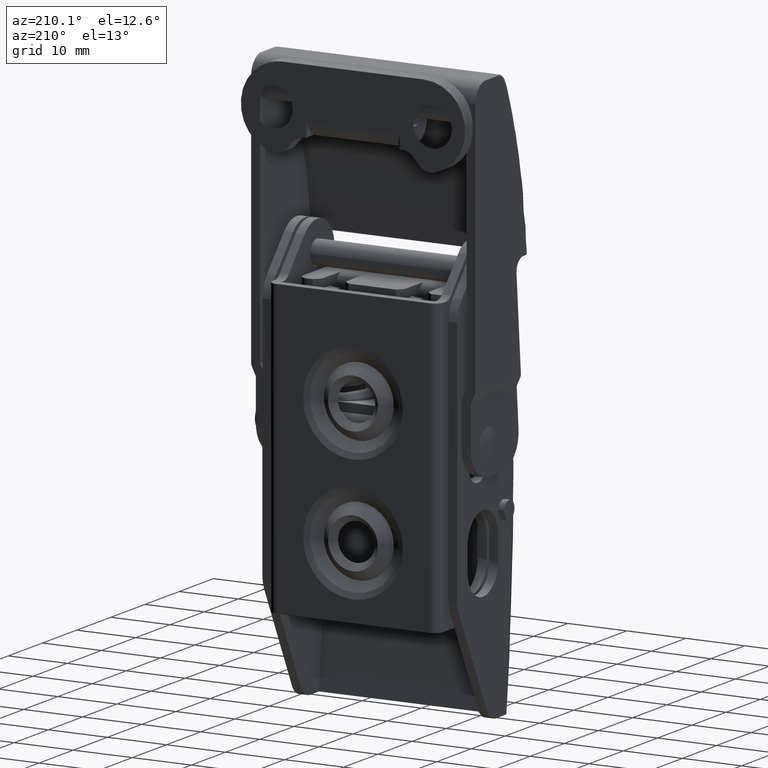
[diagram: clean part render]
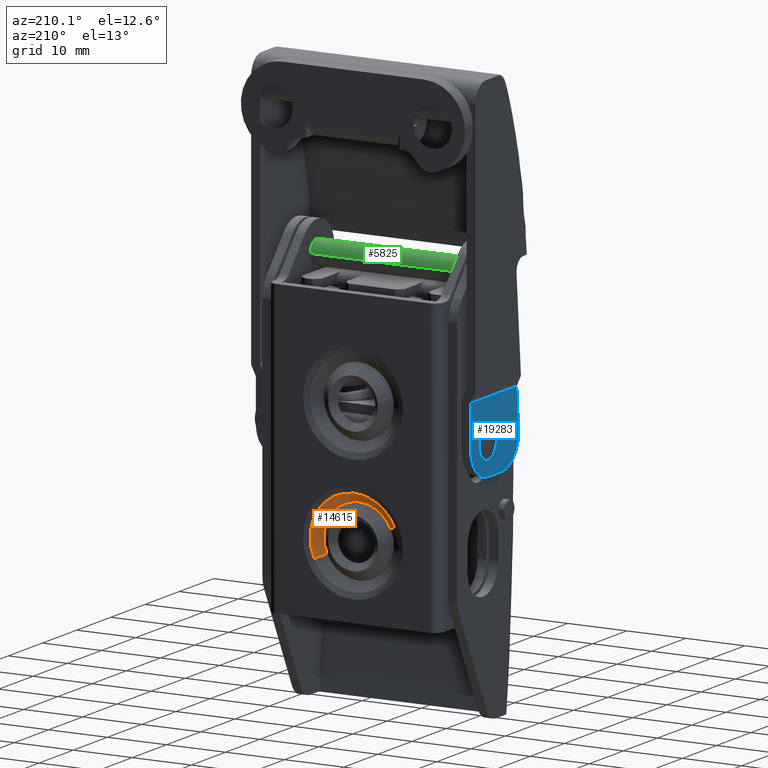
[diagram: same view with three faces highlighted in distinct colors, each labeled with its STEP entity id]
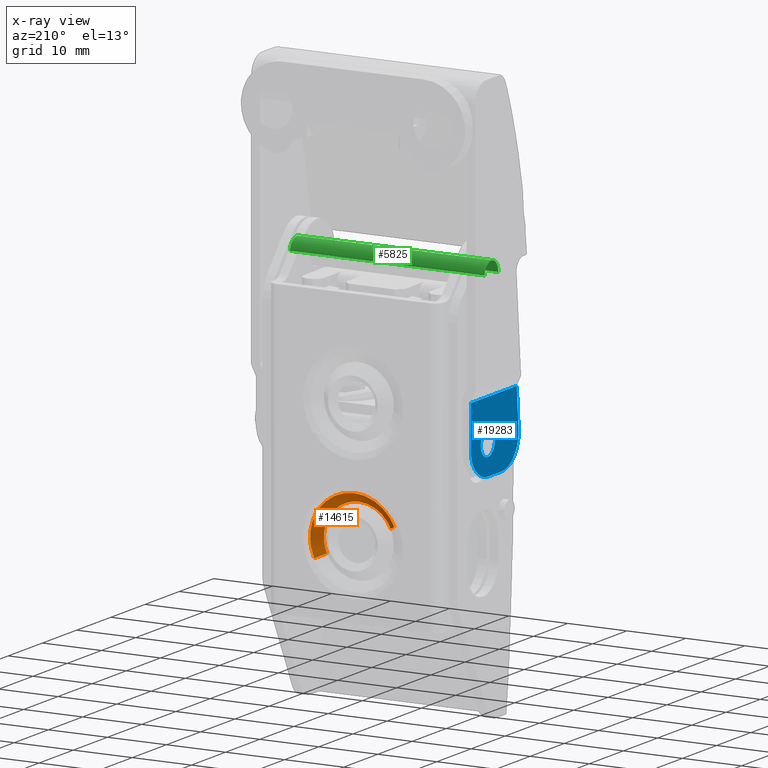
[diagram: x-ray of the same camera — body ghosted, the three highlighted faces saturated]
A machine part, auxiliary view with three faces highlighted in distinct colors.
The next image is the same camera in x-ray (body ghosted, the three faces saturated) — at least one of them is partly hidden behind the body in this view.
Their STEP definitions:

[orange] entity #14615 — the highlighted face is a freeform B-spline surface patch.
#14326=CARTESIAN_POINT('',(5.899635598978897,-1.699999999844768,-21.360837171166821));
#14327=VERTEX_POINT('',#14326);
#14328=CARTESIAN_POINT('',(0.0,-1.699999999843975,-15.089339828308210));
#14329=VERTEX_POINT('',#14328);
#14330=CARTESIAN_POINT('',(5.899635598978897,-1.699999999844769,-21.360837171166818));
#14331=CARTESIAN_POINT('',(5.910660171660971,-1.699999999844786,-21.180587001144787));
#14332=CARTESIAN_POINT('',(5.910660171660775,-1.699999999844800,-20.999999999963091));
#14333=CARTESIAN_POINT('',(5.910660171654363,-1.699999999845276,-15.089339828310051));
#14334=CARTESIAN_POINT('',(0.0,-1.699999999843975,-15.089339828308210));
#14342=(BOUNDED_CURVE()B_SPLINE_CURVE(2,(#14330,#14331,#14332,#14333,#14334),.UNSPECIFIED.,.F.,.U.)B_SPLINE_CURVE_WITH_KNOTS((3,2,3),(0.239332962240872,0.250000000000000,0.500000000000000),.UNSPECIFIED.)CURVE()GEOMETRIC_REPRESENTATION_ITEM()RATIONAL_B_SPLINE_CURVE((0.976072041670853,0.987502787902098,1.0,0.707106781186547,1.0))REPRESENTATION_ITEM(''));
#14343=EDGE_CURVE('',#14327,#14329,#14342,.T.);
#14361=CARTESIAN_POINT('',(-5.378471841459499,-1.699999999832229,-18.548889166984662));
#14362=VERTEX_POINT('',#14361);
#14376=CARTESIAN_POINT('',(0.0,-1.699999999843975,-15.089339828308210));
#14377=CARTESIAN_POINT('',(-3.801864375390952,-1.699999999838103,-15.089339828305366));
#14378=CARTESIAN_POINT('',(-5.378471841459498,-1.699999999832229,-18.548889166984665));
#14386=(BOUNDED_CURVE()B_SPLINE_CURVE(2,(#14376,#14377,#14378),.UNSPECIFIED.,.F.,.U.)B_SPLINE_CURVE_WITH_KNOTS((3,3),(0.500000000000000,0.679570116080264),.UNSPECIFIED.)CURVE()GEOMETRIC_REPRESENTATION_ITEM()RATIONAL_B_SPLINE_CURVE((1.0,0.789620522794185,0.881463982730397))REPRESENTATION_ITEM(''));
#14387=EDGE_CURVE('',#14329,#14362,#14386,.T.);
#14410=CARTESIAN_POINT('',(5.378471841459499,-1.699999999832229,-23.451110832932141));
#14411=VERTEX_POINT('',#14410);
#14412=CARTESIAN_POINT('',(5.378471841459498,-1.699999999832229,-23.451110832932148));
#14413=CARTESIAN_POINT('',(5.832758382289244,-1.699999999838326,-22.454269998588327));
#14414=CARTESIAN_POINT('',(5.899635598978897,-1.699999999844768,-21.360837171166821));
#14422=(BOUNDED_CURVE()B_SPLINE_CURVE(2,(#14412,#14413,#14414),.UNSPECIFIED.,.F.,.U.)B_SPLINE_CURVE_WITH_KNOTS((3,3),(0.179570116080264,0.239332962240872),.UNSPECIFIED.)CURVE()GEOMETRIC_REPRESENTATION_ITEM()RATIONAL_B_SPLINE_CURVE((0.881463982730397,0.912030463873465,0.976072041670853))REPRESENTATION_ITEM(''));
#14423=EDGE_CURVE('',#14411,#14327,#14422,.T.);
#14482=CARTESIAN_POINT('',(6.801247467196288,-0.360769384819679,-24.099507041223511));
#14483=VERTEX_POINT('',#14482);
#14512=CARTESIAN_POINT('',(-6.801247467196289,-0.360769384819678,-17.900492958693292));
#14513=VERTEX_POINT('',#14512);
#14529=CARTESIAN_POINT('',(-5.378471841459499,-1.699999999832229,-18.548889166984662));
#14530=CARTESIAN_POINT('',(-6.801247467196289,-0.360769384819678,-17.900492958693292));
#14531=QUASI_UNIFORM_CURVE('',1,(#14529,#14530),.UNSPECIFIED.,.F.,.U.);
#14532=EDGE_CURVE('',#14362,#14513,#14531,.T.);
#14537=CARTESIAN_POINT('',(5.378471841459499,-1.699999999832229,-23.451110832932141));
#14538=CARTESIAN_POINT('',(6.801247467196288,-0.360769384819679,-24.099507041223511));
#14539=QUASI_UNIFORM_CURVE('',1,(#14537,#14538),.UNSPECIFIED.,.F.,.U.);
#14540=EDGE_CURVE('',#14411,#14483,#14539,.T.);
#14545=CARTESIAN_POINT('',(-5.342902450863749,-1.733480765225168,-18.565099072350389));
#14546=CARTESIAN_POINT('',(-2.908001523255742,-1.733480765225168,-13.222196621486644));
#14547=CARTESIAN_POINT('',(2.434900927608007,-1.733480765225168,-15.657097549094649));
#14548=CARTESIAN_POINT('',(7.777803378471756,-1.733480765225168,-18.091998476702660));
#14549=CARTESIAN_POINT('',(5.342902450863749,-1.733480765225168,-23.434900927566400));
#14550=CARTESIAN_POINT('',(-6.837706092947780,-0.326451600080539,-17.883877805786970));
#14551=CARTESIAN_POINT('',(-3.721583898776347,-0.326451600080539,-11.046171712839186));
#14552=CARTESIAN_POINT('',(3.116122194171433,-0.326451600080539,-14.162293907010620));
#14553=CARTESIAN_POINT('',(9.953828287119213,-0.326451600080539,-17.278416101182053));
#14554=CARTESIAN_POINT('',(6.837706092947780,-0.326451600080539,-24.116122194129829));
#14562=(BOUNDED_SURFACE()B_SPLINE_SURFACE(2,1,((#14545,#14550),(#14546,#14551),(#14547,#14552),(#14548,#14553),(#14549,#14554)),.UNSPECIFIED.,.F.,.F.,.U.)B_SPLINE_SURFACE_WITH_KNOTS((3,2,3),(2,2),(0.0,12.450070963973500,24.900141927946990),(0.0,2.162921962062792),.UNSPECIFIED.)GEOMETRIC_REPRESENTATION_ITEM()RATIONAL_B_SPLINE_SURFACE(((1.0,1.0),(0.707106781186548,0.707106781186548),(1.0,1.0),(0.707106781186548,0.707106781186548),(1.0,1.0)))REPRESENTATION_ITEM('')SURFACE());
#14563=CARTESIAN_POINT('',(4.907464033313442,-0.360769384596261,-15.362561949249759));
#14564=VERTEX_POINT('',#14563);
#14565=CARTESIAN_POINT('',(6.801247467196288,-0.360769384819679,-24.099507041223507));
#14566=CARTESIAN_POINT('',(7.474216414470755,-0.360769384773580,-22.622811461298379));
#14567=CARTESIAN_POINT('',(7.474216414495024,-0.360769384729129,-20.999999999749299));
#14568=CARTESIAN_POINT('',(7.474216414545919,-0.360769384635914,-17.596953685400621));
#14569=CARTESIAN_POINT('',(4.907464033313442,-0.360769384596262,-15.362561949249757));
#14577=(BOUNDED_CURVE()B_SPLINE_CURVE(2,(#14565,#14566,#14567,#14568,#14569),.UNSPECIFIED.,.F.,.U.)B_SPLINE_CURVE_WITH_KNOTS((3,2,3),(0.179570116078924,0.250000000000000,0.385432807299038),.UNSPECIFIED.)CURVE()GEOMETRIC_REPRESENTATION_ITEM()RATIONAL_B_SPLINE_CURVE((0.881463982729026,0.917486258390792,1.0,0.841330596548971,0.854573535032634))REPRESENTATION_ITEM(''));
#14578=EDGE_CURVE('',#14483,#14564,#14577,.T.);
#14579=ORIENTED_EDGE('',*,*,#14578,.F.);
#14580=ORIENTED_EDGE('',*,*,#14540,.F.);
#14581=ORIENTED_EDGE('',*,*,#14423,.T.);
#14582=ORIENTED_EDGE('',*,*,#14343,.T.);
#14583=ORIENTED_EDGE('',*,*,#14387,.T.);
#14584=ORIENTED_EDGE('',*,*,#14532,.T.);
#14585=CARTESIAN_POINT('',(0.0,-0.360769384958777,-13.525783585676839));
#14586=VERTEX_POINT('',#14585);
#14587=CARTESIAN_POINT('',(0.0,-0.360769384958777,-13.525783585676839));
#14588=CARTESIAN_POINT('',(-4.807577545346636,-0.360769384929503,-13.525783585707680));
#14589=CARTESIAN_POINT('',(-6.801247467196291,-0.360769384819678,-17.900492958693281));
#14597=(BOUNDED_CURVE()B_SPLINE_CURVE(2,(#14587,#14588,#14589),.UNSPECIFIED.,.F.,.U.)B_SPLINE_CURVE_WITH_KNOTS((3,3),(0.500000000000000,0.679570116078924),.UNSPECIFIED.)CURVE()GEOMETRIC_REPRESENTATION_ITEM()RATIONAL_B_SPLINE_CURVE((1.0,0.789620522795755,0.881463982729026))REPRESENTATION_ITEM(''));
#14598=EDGE_CURVE('',#14586,#14513,#14597,.T.);
#14599=ORIENTED_EDGE('',*,*,#14598,.F.);
#14600=CARTESIAN_POINT('',(4.907464033313442,-0.360769384596262,-15.362561949249757));
#14601=CARTESIAN_POINT('',(2.797469101162205,-0.360769384777519,-13.525783585517228));
#14602=CARTESIAN_POINT('',(0.0,-0.360769384958777,-13.525783585676839));
#14610=(BOUNDED_CURVE()B_SPLINE_CURVE(2,(#14600,#14601,#14602),.UNSPECIFIED.,.F.,.U.)B_SPLINE_CURVE_WITH_KNOTS((3,3),(0.385432807299038,0.500000000000000),.UNSPECIFIED.)CURVE()GEOMETRIC_REPRESENTATION_ITEM()RATIONAL_B_SPLINE_CURVE((0.854573535032634,0.865776184637577,1.0))REPRESENTATION_ITEM(''));
#14611=EDGE_CURVE('',#14564,#14586,#14610,.T.);
#14612=ORIENTED_EDGE('',*,*,#14611,.F.);
#14613=EDGE_LOOP('',(#14579,#14580,#14581,#14582,#14583,#14584,#14599,#14612));
#14614=FACE_OUTER_BOUND('',#14613,.T.);
#14615=ADVANCED_FACE('',(#14614),#14562,.F.);

[blue] entity #19283 — the highlighted face is a freeform B-spline surface patch.
#17827=CARTESIAN_POINT('',(-18.199999999997448,-8.000000000000091,-3.450000000133610));
#17828=VERTEX_POINT('',#17827);
#17829=CARTESIAN_POINT('',(-18.199999999997448,-10.043680534149891,-5.339158853851931));
#17830=VERTEX_POINT('',#17829);
#17831=CARTESIAN_POINT('',(-18.199999999997448,-8.000000000000091,-3.450000000133610));
#17832=CARTESIAN_POINT('',(-18.199999999997459,-9.895000507862585,-3.450000000133610));
#17833=CARTESIAN_POINT('',(-18.199999999997452,-10.043680534149884,-5.339158853851932));
#17841=(BOUNDED_CURVE()B_SPLINE_CURVE(2,(#17831,#17832,#17833),.UNSPECIFIED.,.F.,.U.)B_SPLINE_CURVE_WITH_KNOTS((3,3),(0.0,0.236331300629446),.UNSPECIFIED.)CURVE()GEOMETRIC_REPRESENTATION_ITEM()RATIONAL_B_SPLINE_CURVE((1.0,0.723120658609088,0.969723356164884))REPRESENTATION_ITEM(''));
#17842=EDGE_CURVE('',#17828,#17830,#17841,.T.);
#17844=CARTESIAN_POINT('',(-18.199999999997448,-5.956319465850295,-5.660841146415288));
#17845=VERTEX_POINT('',#17844);
#17846=CARTESIAN_POINT('',(-18.199999999997456,-5.956319465850296,-5.660841146415289));
#17847=CARTESIAN_POINT('',(-18.199999999997456,-5.950000000000091,-5.580544719519223));
#17848=CARTESIAN_POINT('',(-18.199999999997448,-5.950000000000091,-5.500000000133610));
#17849=CARTESIAN_POINT('',(-18.199999999997448,-5.950000000000091,-3.450000000133610));
#17850=CARTESIAN_POINT('',(-18.199999999997448,-8.000000000000091,-3.450000000133610));
#17858=(BOUNDED_CURVE()B_SPLINE_CURVE(2,(#17846,#17847,#17848,#17849,#17850),.UNSPECIFIED.,.F.,.U.)B_SPLINE_CURVE_WITH_KNOTS((3,2,3),(0.736331300629446,0.750000000000000,1.0),.UNSPECIFIED.)CURVE()GEOMETRIC_REPRESENTATION_ITEM()RATIONAL_B_SPLINE_CURVE((0.969723356164884,0.983986122577460,1.0,0.707106781186547,1.0))REPRESENTATION_ITEM(''));
#17859=EDGE_CURVE('',#17845,#17828,#17858,.T.);
#17926=CARTESIAN_POINT('',(-18.199999999997448,-8.000000000000091,-7.550000000133609));
#17927=VERTEX_POINT('',#17926);
#17928=CARTESIAN_POINT('',(-18.199999999997452,-10.043680534149884,-5.339158853851932));
#17929=CARTESIAN_POINT('',(-18.199999999997452,-10.050000000000088,-5.419455280747997));
#17930=CARTESIAN_POINT('',(-18.199999999997448,-10.050000000000090,-5.500000000133610));
#17931=CARTESIAN_POINT('',(-18.199999999997448,-10.050000000000090,-7.550000000133610));
#17932=CARTESIAN_POINT('',(-18.199999999997448,-8.000000000000091,-7.550000000133609));
#17940=(BOUNDED_CURVE()B_SPLINE_CURVE(2,(#17928,#17929,#17930,#17931,#17932),.UNSPECIFIED.,.F.,.U.)B_SPLINE_CURVE_WITH_KNOTS((3,2,3),(0.236331300629446,0.250000000000000,0.500000000000000),.UNSPECIFIED.)CURVE()GEOMETRIC_REPRESENTATION_ITEM()RATIONAL_B_SPLINE_CURVE((0.969723356164884,0.983986122577460,1.0,0.707106781186547,1.0))REPRESENTATION_ITEM(''));
#17941=EDGE_CURVE('',#17830,#17927,#17940,.T.);
#17975=CARTESIAN_POINT('',(-18.199999999997448,-8.000000000000091,-7.550000000133609));
#17976=CARTESIAN_POINT('',(-18.199999999997456,-6.104999492137596,-7.550000000133610));
#17977=CARTESIAN_POINT('',(-18.199999999997456,-5.956319465850296,-5.660841146415289));
#17985=(BOUNDED_CURVE()B_SPLINE_CURVE(2,(#17975,#17976,#17977),.UNSPECIFIED.,.F.,.U.)B_SPLINE_CURVE_WITH_KNOTS((3,3),(0.500000000000000,0.736331300629446),.UNSPECIFIED.)CURVE()GEOMETRIC_REPRESENTATION_ITEM()RATIONAL_B_SPLINE_CURVE((1.0,0.723120658609088,0.969723356164884))REPRESENTATION_ITEM(''));
#17986=EDGE_CURVE('',#17927,#17845,#17985,.T.);
#19211=CARTESIAN_POINT('',(-18.199999999989039,-2.300793167230813,-11.099399976932030));
#19212=CARTESIAN_POINT('',(-18.200000000006490,-2.300793167230813,2.099400298417143));
#19213=CARTESIAN_POINT('',(-18.199999999989039,-17.697342541692461,-11.099399976932030));
#19214=CARTESIAN_POINT('',(-18.200000000006490,-17.697342541692461,2.099400298417143));
#19215=B_SPLINE_SURFACE_WITH_KNOTS('',1,1,((#19211,#19213),(#19212,#19214)),.UNSPECIFIED.,.F.,.F.,.U.,(2,2),(2,2),(0.0,13.198800275349170),(0.0,15.396549374461650),.UNSPECIFIED.);
#19216=CARTESIAN_POINT('',(-18.199999999996450,-3.000000000000115,-5.500000000172790));
#19217=VERTEX_POINT('',#19216);
#19218=CARTESIAN_POINT('',(-18.199999999989849,-8.000000000000091,-10.500000000190321));
#19219=VERTEX_POINT('',#19218);
#19220=CARTESIAN_POINT('',(-18.199999999996450,-3.000000000000090,-5.500000000172787));
#19221=CARTESIAN_POINT('',(-18.199999999989839,-3.000000000000937,-10.500000000171939));
#19222=CARTESIAN_POINT('',(-18.199999999989839,-8.000000000000091,-10.500000000171941));
#19230=(BOUNDED_CURVE()B_SPLINE_CURVE(2,(#19220,#19221,#19222),.UNSPECIFIED.,.F.,.U.)CURVE()GEOMETRIC_REPRESENTATION_ITEM()QUASI_UNIFORM_CURVE()RATIONAL_B_SPLINE_CURVE((1.0,0.707106781186607,1.0))REPRESENTATION_ITEM(''));
#19231=EDGE_CURVE('',#19217,#19219,#19230,.T.);
#19232=ORIENTED_EDGE('',*,*,#19231,.T.);
#19233=CARTESIAN_POINT('',(-18.199999999989799,-12.0,-10.500000000171941));
#19234=VERTEX_POINT('',#19233);
#19235=CARTESIAN_POINT('',(-18.199999999989849,-8.000000000000091,-10.500000000190321));
#19236=CARTESIAN_POINT('',(-18.199999999989799,-12.0,-10.500000000171941));
#19237=QUASI_UNIFORM_CURVE('',1,(#19235,#19236),.UNSPECIFIED.,.F.,.U.);
#19238=EDGE_CURVE('',#19219,#19234,#19237,.T.);
#19239=ORIENTED_EDGE('',*,*,#19238,.T.);
#19240=CARTESIAN_POINT('',(-18.199999999997001,-16.983027511585298,-5.088372961719601));
#19241=VERTEX_POINT('',#19240);
#19242=CARTESIAN_POINT('',(-18.199999999989799,-12.0,-10.500000000171941));
#19243=CARTESIAN_POINT('',(-18.199999999989839,-12.344416885845050,-10.500048589614741));
#19244=CARTESIAN_POINT('',(-18.199999999989970,-13.033237125606931,-10.428549107756410));
#19245=CARTESIAN_POINT('',(-18.199999999990350,-14.063775806203351,-10.098558933469761));
#19246=CARTESIAN_POINT('',(-18.199999999991011,-14.942820037077190,-9.583965328980460));
#19247=CARTESIAN_POINT('',(-18.199999999992158,-15.731823760949730,-8.878298076627548));
#19248=CARTESIAN_POINT('',(-18.199999999992780,-16.288955254176940,-8.131304858395666));
#19249=CARTESIAN_POINT('',(-18.199999999994368,-16.718375096016860,-7.235741975388222));
#19250=CARTESIAN_POINT('',(-18.199999999995072,-16.986070299677049,-6.254450671484401));
#19251=CARTESIAN_POINT('',(-18.199999999996610,-17.016799627892400,-5.495978762635897));
#19252=CARTESIAN_POINT('',(-18.199999999997001,-16.983027511585298,-5.088372961719601));
#19253=B_SPLINE_CURVE_WITH_KNOTS('',3,(#19242,#19243,#19244,#19245,#19246,#19247,#19248,#19249,#19250,#19251,#19252),.UNSPECIFIED.,.F.,.U.,(4,1,1,1,1,1,1,1,4),(0.000000121534580,1.033248478817737,2.066533408520411,3.228959444968282,4.068519732145297,5.230906403821765,6.005857866094974,7.039146661582945,8.266132512753893),.UNSPECIFIED.);
#19254=EDGE_CURVE('',#19234,#19241,#19253,.T.);
#19255=ORIENTED_EDGE('',*,*,#19254,.T.);
#19256=CARTESIAN_POINT('',(-18.200000000005652,-16.438789607205852,1.499999999810356));
#19257=VERTEX_POINT('',#19256);
#19258=CARTESIAN_POINT('',(-18.199999999997001,-16.983027511585298,-5.088372961719601));
#19259=CARTESIAN_POINT('',(-18.200000000005652,-16.438789607205852,1.499999999810356));
#19260=QUASI_UNIFORM_CURVE('',1,(#19258,#19259),.UNSPECIFIED.,.F.,.U.);
#19261=EDGE_CURVE('',#19241,#19257,#19260,.T.);
#19262=ORIENTED_EDGE('',*,*,#19261,.T.);
#19263=CARTESIAN_POINT('',(-18.200000000005701,-3.000000000000115,1.499999999810350));
#19264=VERTEX_POINT('',#19263);
#19265=CARTESIAN_POINT('',(-18.200000000005701,-3.000000000000115,1.499999999810350));
#19266=CARTESIAN_POINT('',(-18.200000000005652,-16.438789607205852,1.499999999810356));
#19267=QUASI_UNIFORM_CURVE('',1,(#19265,#19266),.UNSPECIFIED.,.F.,.U.);
#19268=EDGE_CURVE('',#19264,#19257,#19267,.T.);
#19269=ORIENTED_EDGE('',*,*,#19268,.F.);
#19270=CARTESIAN_POINT('',(-18.200000000005701,-3.000000000000115,1.499999999810350));
#19271=CARTESIAN_POINT('',(-18.199999999996450,-3.000000000000115,-5.500000000172790));
#19272=QUASI_UNIFORM_CURVE('',1,(#19270,#19271),.UNSPECIFIED.,.F.,.U.);
#19273=EDGE_CURVE('',#19264,#19217,#19272,.T.);
#19274=ORIENTED_EDGE('',*,*,#19273,.T.);
#19275=EDGE_LOOP('',(#19232,#19239,#19255,#19262,#19269,#19274));
#19276=FACE_OUTER_BOUND('',#19275,.T.);
#19277=ORIENTED_EDGE('',*,*,#17986,.T.);
#19278=ORIENTED_EDGE('',*,*,#17859,.T.);
#19279=ORIENTED_EDGE('',*,*,#17842,.T.);
#19280=ORIENTED_EDGE('',*,*,#17941,.T.);
#19281=EDGE_LOOP('',(#19277,#19278,#19279,#19280));
#19282=FACE_BOUND('',#19281,.T.);
#19283=ADVANCED_FACE('',(#19276,#19282),#19215,.F.);

[green] entity #5825 — the highlighted face is a freeform B-spline surface patch.
#5588=CARTESIAN_POINT('',(16.500000000270500,-12.0,21.000000000329159));
#5589=VERTEX_POINT('',#5588);
#5590=CARTESIAN_POINT('',(16.500000000270550,-10.004947867778140,19.139507635502412));
#5591=VERTEX_POINT('',#5590);
#5592=CARTESIAN_POINT('',(16.500000000270500,-12.0,21.000000000329159));
#5593=CARTESIAN_POINT('',(16.500000000270525,-10.150610284266110,20.991294722231210));
#5594=CARTESIAN_POINT('',(16.500000000270546,-10.004947867778144,19.139507635502408));
#5602=(BOUNDED_CURVE()B_SPLINE_CURVE(2,(#5592,#5593,#5594),.UNSPECIFIED.,.F.,.U.)B_SPLINE_CURVE_WITH_KNOTS((3,3),(0.0,0.236331300632701),.UNSPECIFIED.)CURVE()GEOMETRIC_REPRESENTATION_ITEM()RATIONAL_B_SPLINE_CURVE((1.0,0.723120658605274,0.969723356171677))REPRESENTATION_ITEM(''));
#5603=EDGE_CURVE('',#5589,#5591,#5602,.T.);
#5605=CARTESIAN_POINT('',(16.500000000270550,-13.995052132221851,18.860492364966390));
#5606=VERTEX_POINT('',#5605);
#5607=CARTESIAN_POINT('',(16.500000000270546,-13.995052132221854,18.860492364966390));
#5608=CARTESIAN_POINT('',(16.500000000270461,-13.999925268625248,18.930163686980695));
#5609=CARTESIAN_POINT('',(16.500000000270472,-13.999926595062609,19.000005133214280));
#5610=CARTESIAN_POINT('',(16.500000000270479,-13.999964579258787,21.000002477195299));
#5611=CARTESIAN_POINT('',(16.500000000270500,-12.0,21.000000000329159));
#5619=(BOUNDED_CURVE()B_SPLINE_CURVE(2,(#5607,#5608,#5609,#5610,#5611),.UNSPECIFIED.,.F.,.U.)B_SPLINE_CURVE_WITH_KNOTS((3,2,3),(0.737829682996913,0.750000000000000,1.0),.UNSPECIFIED.)CURVE()GEOMETRIC_REPRESENTATION_ITEM()RATIONAL_B_SPLINE_CURVE((0.972871408708909,0.985741586715943,1.0,0.707106781186547,1.0))REPRESENTATION_ITEM(''));
#5620=EDGE_CURVE('',#5606,#5589,#5619,.T.);
#5718=CARTESIAN_POINT('',(-16.500000000212449,-10.003730403152240,19.122097079312869));
#5719=VERTEX_POINT('',#5718);
#5720=CARTESIAN_POINT('',(16.500000000270550,-10.004947867778140,19.139507635502412));
#5721=CARTESIAN_POINT('',(-16.500000000205599,-10.003730403145759,19.122097079321779));
#5722=QUASI_UNIFORM_CURVE('',1,(#5720,#5721),.UNSPECIFIED.,.F.,.U.);
#5723=EDGE_CURVE('',#5591,#5719,#5722,.T.);
#5727=CARTESIAN_POINT('',(-16.500000000212459,-13.996269596847760,18.877902921155929));
#5728=VERTEX_POINT('',#5727);
#5729=CARTESIAN_POINT('',(16.500000000270550,-13.995052132221851,18.860492364966390));
#5730=CARTESIAN_POINT('',(-16.500000000205599,-13.996269596854241,18.877902921147019));
#5731=QUASI_UNIFORM_CURVE('',1,(#5729,#5730),.UNSPECIFIED.,.F.,.U.);
#5732=EDGE_CURVE('',#5606,#5728,#5731,.T.);
#5767=CARTESIAN_POINT('',(17.325000000282404,-13.993498412074537,18.832594450047107));
#5768=CARTESIAN_POINT('',(17.325000000282408,-13.994877460584211,18.855141693874760));
#5769=CARTESIAN_POINT('',(17.325000000282408,-14.118366675955068,20.874172518045238));
#5770=CARTESIAN_POINT('',(17.325000000282412,-12.122097079072111,20.996269597117351));
#5771=CARTESIAN_POINT('',(17.325000000282408,-10.125827482189157,21.118366676189460));
#5772=CARTESIAN_POINT('',(17.325000000282401,-10.002866919668886,19.107979249723115));
#5773=CARTESIAN_POINT('',(17.325000000282412,-10.002008480355997,19.093943891022299));
#5774=CARTESIAN_POINT('',(-17.345625000217808,-13.993498412074537,18.832594450047107));
#5775=CARTESIAN_POINT('',(-17.345625000217819,-13.994877460584211,18.855141693874760));
#5776=CARTESIAN_POINT('',(-17.345625000217819,-14.118366675955068,20.874172518045238));
#5777=CARTESIAN_POINT('',(-17.345625000217812,-12.122097079072111,20.996269597117351));
#5778=CARTESIAN_POINT('',(-17.345625000217819,-10.125827482189157,21.118366676189460));
#5779=CARTESIAN_POINT('',(-17.345625000217808,-10.002866919668886,19.107979249723115));
#5780=CARTESIAN_POINT('',(-17.345625000217815,-10.002008480355997,19.093943891022299));
#5788=(BOUNDED_SURFACE()B_SPLINE_SURFACE(2,1,((#5767,#5774),(#5768,#5775),(#5769,#5776),(#5770,#5777),(#5771,#5778),(#5772,#5779),(#5773,#5780)),.UNSPECIFIED.,.F.,.F.,.U.)B_SPLINE_SURFACE_WITH_KNOTS((3,1,2,1,3),(2,2),(0.0,0.053686084811654,3.367394583861526,6.681103082911397,6.714342401721846),(0.0,34.670625000500223),.UNSPECIFIED.)GEOMETRIC_REPRESENTATION_ITEM()RATIONAL_B_SPLINE_SURFACE(((1.009490448656233,1.009490448656233),(1.004745224328116,1.004745224328116),(0.707106781186548,0.707106781186548),(1.0,1.0),(0.707106781186548,0.707106781186548),(1.002937968466554,1.002937968466554),(1.005875936933107,1.005875936933107)))REPRESENTATION_ITEM('')SURFACE());
#5789=ORIENTED_EDGE('',*,*,#5723,.T.);
#5790=CARTESIAN_POINT('',(-16.500000000205599,-12.0,21.000000000218229));
#5791=VERTEX_POINT('',#5790);
#5792=CARTESIAN_POINT('',(-16.500000000205599,-12.0,21.000000000218229));
#5793=CARTESIAN_POINT('',(-16.500000000209024,-10.118587866209230,21.000000000214619));
#5794=CARTESIAN_POINT('',(-16.500000000212449,-10.003730403152243,19.122097079312873));
#5802=(BOUNDED_CURVE()B_SPLINE_CURVE(2,(#5792,#5793,#5794),.UNSPECIFIED.,.F.,.U.)B_SPLINE_CURVE_WITH_KNOTS((3,3),(0.0,0.239332962240503),.UNSPECIFIED.)CURVE()GEOMETRIC_REPRESENTATION_ITEM()RATIONAL_B_SPLINE_CURVE((1.0,0.719603993284883,0.976072041670061))REPRESENTATION_ITEM(''));
#5803=EDGE_CURVE('',#5791,#5719,#5802,.T.);
#5804=ORIENTED_EDGE('',*,*,#5803,.F.);
#5805=CARTESIAN_POINT('',(-16.500000000212449,-13.996269596847759,18.877902921155929));
#5806=CARTESIAN_POINT('',(-16.500000000212363,-14.000000000004732,18.938894473636321));
#5807=CARTESIAN_POINT('',(-16.500000000212260,-14.000000000004400,19.000000000241400));
#5808=CARTESIAN_POINT('',(-16.500000000208818,-13.999999999993802,21.000000000221622));
#5809=CARTESIAN_POINT('',(-16.500000000205599,-12.0,21.000000000218229));
#5817=(BOUNDED_CURVE()B_SPLINE_CURVE(2,(#5805,#5806,#5807,#5808,#5809),.UNSPECIFIED.,.F.,.U.)B_SPLINE_CURVE_WITH_KNOTS((3,2,3),(0.739332962240503,0.750000000000000,1.0),.UNSPECIFIED.)CURVE()GEOMETRIC_REPRESENTATION_ITEM()RATIONAL_B_SPLINE_CURVE((0.976072041670061,0.987502787901665,1.0,0.707106781186548,1.0))REPRESENTATION_ITEM(''));
#5818=EDGE_CURVE('',#5728,#5791,#5817,.T.);
#5819=ORIENTED_EDGE('',*,*,#5818,.F.);
#5820=ORIENTED_EDGE('',*,*,#5732,.F.);
#5821=ORIENTED_EDGE('',*,*,#5620,.T.);
#5822=ORIENTED_EDGE('',*,*,#5603,.T.);
#5823=EDGE_LOOP('',(#5789,#5804,#5819,#5820,#5821,#5822));
#5824=FACE_OUTER_BOUND('',#5823,.T.);
#5825=ADVANCED_FACE('',(#5824),#5788,.T.);